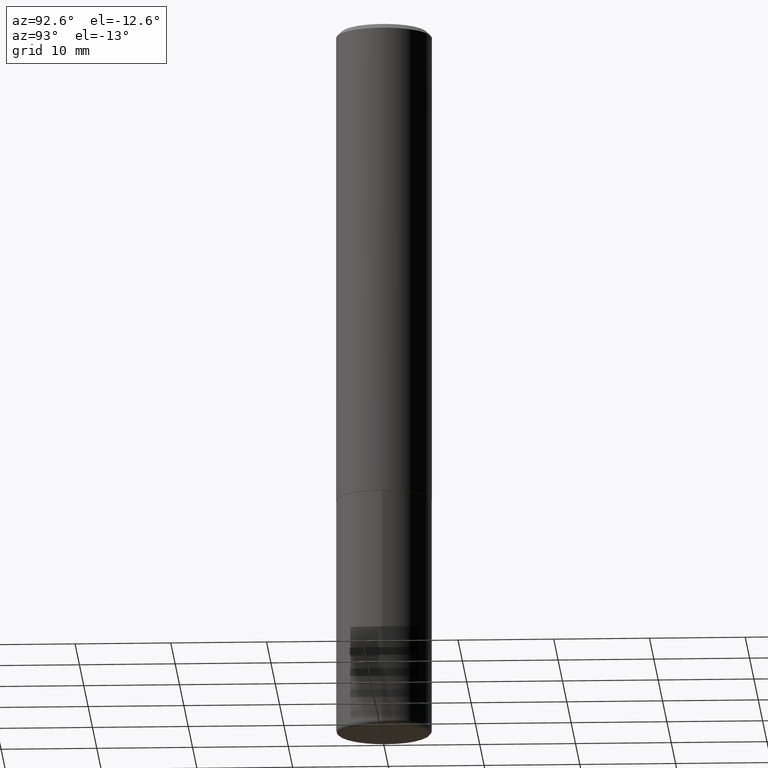
[diagram: clean part render]
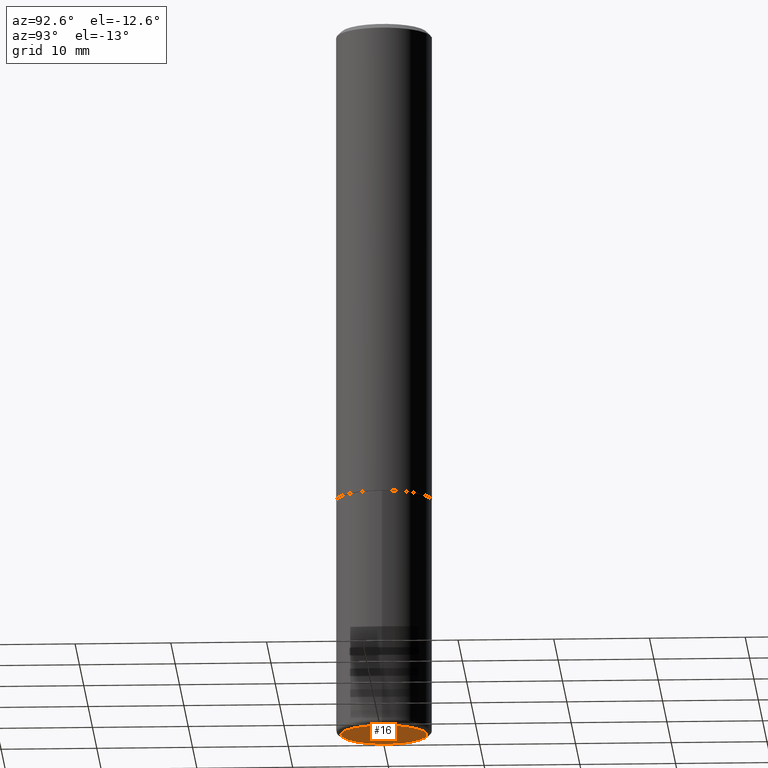
[diagram: same view with one face highlighted and labeled with its STEP entity id]
A machine part, auxiliary view. The second image highlights one B-rep face of the part: STEP entity #16.
In plain terms, the highlighted planar face has unit normal (0, -0, -1).
Its self-contained STEP definition (entity closure, byte-faithful):
#3 = FACE_OUTER_BOUND ( 'NONE', #261, .T. ) ;
#12 = VERTEX_POINT ( 'NONE', #89 ) ;
#16 = ADVANCED_FACE ( 'NONE', ( #3 ), #160, .T. ) ;
#19 = ORIENTED_EDGE ( 'NONE', *, *, #55, .F. ) ;
#50 = DIRECTION ( 'NONE',  ( 1.000000000000000000, -6.982962677686272233E-15, 0.000000000000000000 ) ) ;
#55 = EDGE_CURVE ( 'NONE', #12, #97, #70, .T. ) ;
#70 = CIRCLE ( 'NONE', #338, 0.1771500000000000019 ) ;
#82 = DIRECTION ( 'NONE',  ( -2.445468806185136597E-29, 3.491481338843145583E-15, 1.000000000000000000 ) ) ;
#89 = CARTESIAN_POINT ( 'NONE',  ( -0.1771500000000000019, -8.946540090277048352E-15, -2.952799999999999869 ) ) ;
#97 = VERTEX_POINT ( 'NONE', #118 ) ;
#117 = CARTESIAN_POINT ( 'NONE',  ( 7.220980290903470182E-29, -1.030964609733603853E-14, -2.952799999999999869 ) ) ;
#118 = CARTESIAN_POINT ( 'NONE',  ( 0.1771500000000000019, -1.154667793568816250E-14, -2.952799999999999869 ) ) ;
#128 = DIRECTION ( 'NONE',  ( -1.000000000000000000, 6.982962677686265922E-15, -4.876176775795935793E-29 ) ) ;
#160 = PLANE ( 'NONE',  #347 ) ;
#222 = CIRCLE ( 'NONE', #326, 0.1771500000000000019 ) ;
#227 = ORIENTED_EDGE ( 'NONE', *, *, #320, .F. ) ;
#234 = DIRECTION ( 'NONE',  ( -2.445468806185136597E-29, 3.491481338843145583E-15, 1.000000000000000000 ) ) ;
#260 = CARTESIAN_POINT ( 'NONE',  ( 7.220980290903470182E-29, -1.030964609733603853E-14, -2.952799999999999869 ) ) ;
#261 = EDGE_LOOP ( 'NONE', ( #227, #19 ) ) ;
#287 = DIRECTION ( 'NONE',  ( 2.438088387897960049E-29, -3.491481338843145188E-15, -1.000000000000000000 ) ) ;
#317 = DIRECTION ( 'NONE',  ( 1.000000000000000000, -6.982962677686272233E-15, 0.000000000000000000 ) ) ;
#320 = EDGE_CURVE ( 'NONE', #97, #12, #222, .T. ) ;
#326 = AXIS2_PLACEMENT_3D ( 'NONE', #117, #82, #317 ) ;
#327 = CARTESIAN_POINT ( 'NONE',  ( 7.220980290903470182E-29, -1.030964609733603853E-14, -2.952799999999999869 ) ) ;
#338 = AXIS2_PLACEMENT_3D ( 'NONE', #327, #234, #50 ) ;
#347 = AXIS2_PLACEMENT_3D ( 'NONE', #260, #287, #128 ) ;